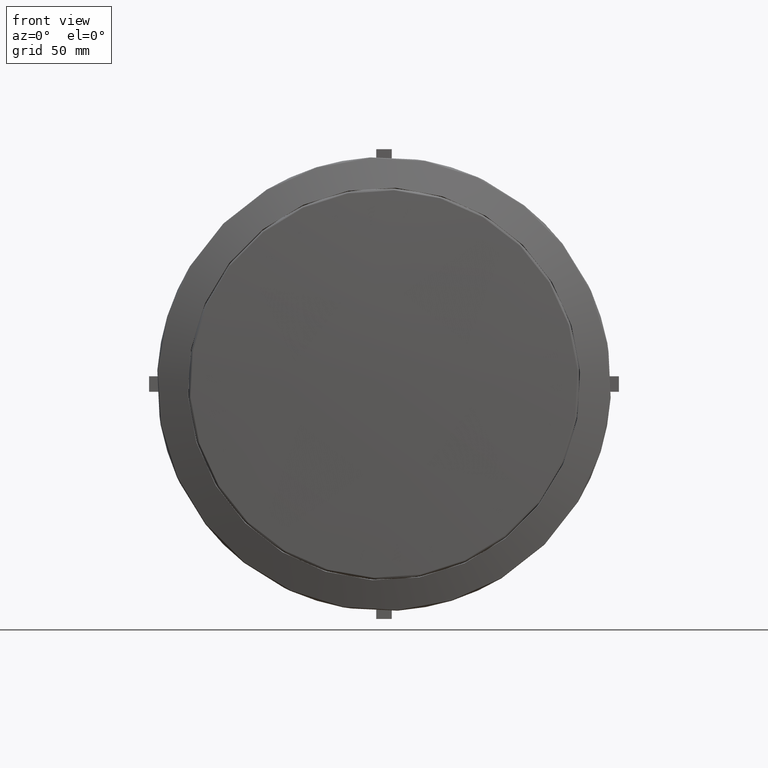
[diagram: clean part render]
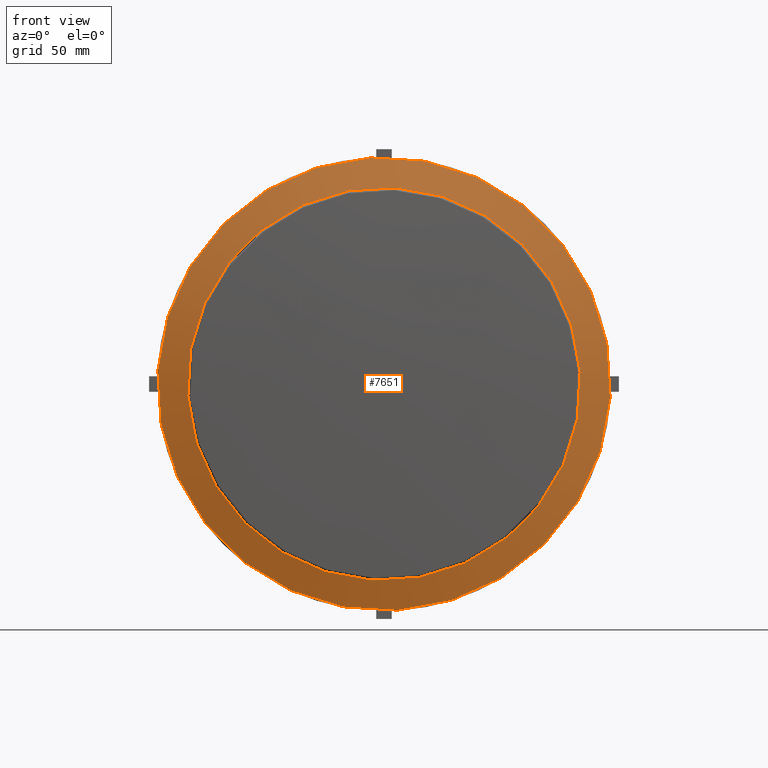
[diagram: same view with one face highlighted and labeled with its STEP entity id]
A machine part, front view. The second image highlights one B-rep face of the part: STEP entity #7651.
In plain terms, the highlighted face is a freeform B-spline surface patch.
Its self-contained STEP definition (entity closure, byte-faithful):
#437 = VERTEX_POINT ( 'NONE', #981 ) ;
#777 = DIRECTION ( 'NONE',  ( 2.337966986049049251E-17, -1.000000000000000000, -2.337966986049057571E-17 ) ) ;
#981 = CARTESIAN_POINT ( 'NONE',  ( 91.69292258329633682, -13.12092154844713932, -91.69292258329659262 ) ) ;
#2140 = EDGE_CURVE ( 'NONE', #437, #17121, #13479, .T. ) ;
#2288 = DIRECTION ( 'NONE',  ( -0.7071067811865487940, 0.0000000000000000000, -0.7071067811865462405 ) ) ;
#2508 = CARTESIAN_POINT ( 'NONE',  ( 6.254971228461081445, 10.09647738434223108, -180.3463201353442855 ) ) ;
#2997 = CARTESIAN_POINT ( 'NONE',  ( -91.69292258329630840, -13.12092154844714642, 91.69292258329664946 ) ) ;
#4189 = CARTESIAN_POINT ( 'NONE',  ( 128.1311700468216372, -19.97018300722390904, 62.75208618492693802 ) ) ;
#4264 = DIRECTION ( 'NONE',  ( -0.7071067811865463515, -4.013291425733723344E-17, 0.7071067811865489050 ) ) ;
#4534 = CARTESIAN_POINT ( 'NONE',  ( -127.1990116913562048, -20.25501431626557647, -63.02404999568477706 ) ) ;
#4586 = AXIS2_PLACEMENT_3D ( 'NONE', #5598, #17074, #7106 ) ;
#4643 = CARTESIAN_POINT ( 'NONE',  ( -62.17732856046776391, -20.36079307094158963, 123.3213467575852746 ) ) ;
#4857 = EDGE_CURVE ( 'NONE', #11213, #20323, #19078, .T. ) ;
#5076 = CARTESIAN_POINT ( 'NONE',  ( -79.54951288607698245, -18.99999999678743023, -79.54951288607666982 ) ) ;
#5598 = CARTESIAN_POINT ( 'NONE',  ( -1.839804309428305373E-14, -18.99999999678743023, 3.123719034919427383E-14 ) ) ;
#6278 = CIRCLE ( 'NONE', #8123, 129.6733746909241063 ) ;
#6375 = CARTESIAN_POINT ( 'NONE',  ( 123.8470765489191479, -20.06126495179546509, -62.75421481488665876 ) ) ;
#7106 = DIRECTION ( 'NONE',  ( -0.7071067811865487940, 0.0000000000000000000, -0.7071067811865462405 ) ) ;
#7651 = ADVANCED_FACE ( 'NONE', ( #12222, #9085 ), #15496, .T. ) ;
#7727 = ORIENTED_EDGE ( 'NONE', *, *, #17240, .F. ) ;
#7974 = EDGE_LOOP ( 'NONE', ( #11509, #13235 ) ) ;
#8123 = AXIS2_PLACEMENT_3D ( 'NONE', #13511, #20335, #21887 ) ;
#8144 = ORIENTED_EDGE ( 'NONE', *, *, #4857, .F. ) ;
#9085 = FACE_OUTER_BOUND ( 'NONE', #7974, .T. ) ;
#11098 = CARTESIAN_POINT ( 'NONE',  ( -122.9655478928596324, -20.42120132390006404, 62.53312742519364775 ) ) ;
#11213 = VERTEX_POINT ( 'NONE', #15301 ) ;
#11313 = CARTESIAN_POINT ( 'NONE',  ( -0.2901481905710975306, -53.16889009958638468, -65.66923205246537520 ) ) ;
#11321 = AXIS2_PLACEMENT_3D ( 'NONE', #14653, #777, #4264 ) ;
#11421 = CARTESIAN_POINT ( 'NONE',  ( 1.289453960357484386, -53.20724380250747743, 65.46441565602845003 ) ) ;
#11509 = ORIENTED_EDGE ( 'NONE', *, *, #15218, .T. ) ;
#12184 = EDGE_LOOP ( 'NONE', ( #7727, #8144 ) ) ;
#12222 = FACE_BOUND ( 'NONE', #12184, .T. ) ;
#12779 = CARTESIAN_POINT ( 'NONE',  ( -65.07597289865239532, -53.27319440177529941, -0.9010112029811876422 ) ) ;
#12886 = CARTESIAN_POINT ( 'NONE',  ( 66.05757116625319725, -53.10295709713719248, 0.6784873043587102970 ) ) ;
#12981 = AXIS2_PLACEMENT_3D ( 'NONE', #19396, #18036, #2288 ) ;
#13235 = ORIENTED_EDGE ( 'NONE', *, *, #2140, .T. ) ;
#13479 = CIRCLE ( 'NONE', #11321, 129.6733746909241063 ) ;
#13511 = CARTESIAN_POINT ( 'NONE',  ( -1.508060887882029493E-15, -13.12092154844714287, 1.434720814279319339E-14 ) ) ;
#14460 = CARTESIAN_POINT ( 'NONE',  ( -179.8679003142225952, 9.822202026136386266, 5.630775003830884806 ) ) ;
#14574 = CARTESIAN_POINT ( 'NONE',  ( 63.10971599862789816, -20.12162266387268517, -123.4915753651776527 ) ) ;
#14653 = CARTESIAN_POINT ( 'NONE',  ( -1.508060887882029493E-15, -13.12092154844714287, 1.434720814279319339E-14 ) ) ;
#14901 = CARTESIAN_POINT ( 'NONE',  ( -5.305086679635223845, 9.995673707310636757, 180.1935886384176513 ) ) ;
#15218 = EDGE_CURVE ( 'NONE', #17121, #437, #6278, .T. ) ;
#15301 = CARTESIAN_POINT ( 'NONE',  ( 79.54951288607696824, -18.99999999678743023, 79.54951288607672666 ) ) ;
#15496 =( BOUNDED_SURFACE ( )  B_SPLINE_SURFACE ( 3, 3, ( 
 ( #19830, #6375, #14574, #2508 ),
 ( #4189, #12886, #11313, #16141 ),
 ( #18052, #11421, #12779, #4534 ),
 ( #14901, #4643, #11098, #14460 ) ),
 .UNSPECIFIED., .F., .F., .T. ) 
 B_SPLINE_SURFACE_WITH_KNOTS ( ( 4, 4 ),
 ( 4, 4 ),
 ( 0.0000000000000000000, 1.000000000000000000 ),
 ( 0.0000000000000000000, 1.000000000000000000 ),
 .UNSPECIFIED. ) 
 GEOMETRIC_REPRESENTATION_ITEM ( )  RATIONAL_B_SPLINE_SURFACE ( (
 ( 1.000000000000000000, 0.9572184410714656977, 0.9572184410714656977, 1.000000000000000000),
 ( 0.9573867160495102002, 0.9164282198394421153, 0.9164282198394421153, 0.9573867160495102002),
 ( 0.9573867160495102002, 0.9164282198394421153, 0.9164282198394421153, 0.9573867160495102002),
 ( 1.000000000000000000, 0.9572184410714656977, 0.9572184410714656977, 1.000000000000000000) ) ) 
 REPRESENTATION_ITEM ( '' )  SURFACE ( )  );
#16141 = CARTESIAN_POINT ( 'NONE',  ( -62.39661142733774568, -20.15951986468260415, -127.7756952892318054 ) ) ;
#17074 = DIRECTION ( 'NONE',  ( 0.0000000000000000000, -1.000000000000000000, 0.0000000000000000000 ) ) ;
#17121 = VERTEX_POINT ( 'NONE', #2997 ) ;
#17240 = EDGE_CURVE ( 'NONE', #20323, #11213, #19333, .T. ) ;
#18036 = DIRECTION ( 'NONE',  ( 0.0000000000000000000, -1.000000000000000000, 0.0000000000000000000 ) ) ;
#18052 = CARTESIAN_POINT ( 'NONE',  ( 63.37961962571520758, -20.06562692680894600, 127.5545813213859390 ) ) ;
#19078 = CIRCLE ( 'NONE', #12981, 112.5000000036631604 ) ;
#19333 = CIRCLE ( 'NONE', #4586, 112.5000000036631604 ) ;
#19396 = CARTESIAN_POINT ( 'NONE',  ( -1.839804309428305373E-14, -18.99999999678743023, 3.123719034919427383E-14 ) ) ;
#19830 = CARTESIAN_POINT ( 'NONE',  ( 180.6717359706970001, 10.26980392952581056, -5.929555393108993044 ) ) ;
#20323 = VERTEX_POINT ( 'NONE', #5076 ) ;
#20335 = DIRECTION ( 'NONE',  ( 2.337966986049049251E-17, -1.000000000000000000, -2.337966986049057571E-17 ) ) ;
#21887 = DIRECTION ( 'NONE',  ( -0.7071067811865463515, -4.013291425733723344E-17, 0.7071067811865489050 ) ) ;